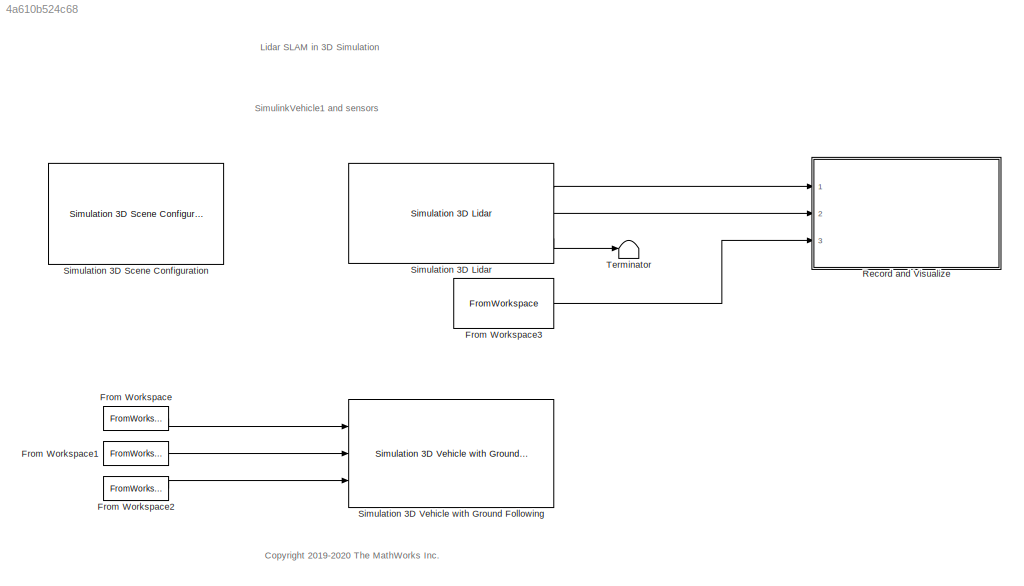
MODEL slx_4a610b524c68
KIND model
CONFIG AbsTol = auto
CONFIG EnableMultiTasking = off
CONFIG FixedStep = auto
CONFIG MaxStep = auto
CONFIG MinStep = auto
CONFIG PreLoadFcn = % Load reference path for recorded drive segment\nxData   = load('refPosesX.mat');\nyData   = load('refPosesY.mat');\nyawData = load('refPosesT.mat');\n\n% Set up workspace variables used by model\nrefPosesX = xData.refPosesX;\nrefPosesY = yData.refPosesY;\nrefPosesT = yawData.refPosesT;\n\n% Load INS measurement\ninsMeasurement = load('insMeasurement.mat');\ninsMeasurement = insMeasurement.insMeasurement;\n
CONFIG RelTol = 1e-3
CONFIG SampleTimeConstraint = Unconstrained
CONFIG SolverName = VariableStepAuto
CONFIG StartTime = 0.0
CONFIG StopTime = 106.1385
BLOCK [FromWorkspace] From Workspace
  OutputAfterFinalValue = Holding final value
  VariableName = refPosesX
BLOCK [FromWorkspace] From Workspace1
  OutputAfterFinalValue = Holding final value
  VariableName = refPosesY
BLOCK [FromWorkspace] From Workspace2
  Interpolate = off
  OutputAfterFinalValue = Holding final value
  VariableName = refPosesT
BLOCK [FromWorkspace] From Workspace3
  Interpolate = off
  OutputAfterFinalValue = Holding final value
  SampleTime = 0.1
  VariableName = insMeasurement
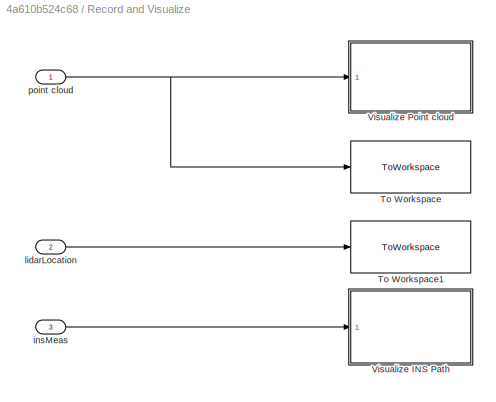
BLOCK [SubSystem] Record and Visualize
  NameLocation = top
  Ports = [3]
  RequestExecContextInheritance = off
  TreatAsAtomicUnit = on
BLOCK [ToWorkspace] Record and Visualize/To Workspace
  MaxDataPoints = inf
  Ports = [1]
  SampleTime = -1
  SaveFormat = Structure With Time
  VariableName = ptCloudData
BLOCK [ToWorkspace] Record and Visualize/To Workspace1
  FixptAsFi = on
  MaxDataPoints = inf
  Ports = [1]
  SampleTime = -1
  SaveFormat = Structure With Time
  VariableName = lidarLocation
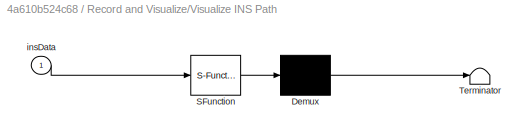
BLOCK [SubSystem] Record and Visualize/Visualize INS Path
  ErrorFcn = Stateflow.Translate.translate
  PermitHierarchicalResolution = ExplicitOnly
  Ports = [1]
  RequestExecContextInheritance = off
  SFBlockType = MATLAB Function
  StopFcn = playerFigure = findall(groot,'type','figure','name','INS Sensor Display');\n\nif ~isempty(playerFigure)\n    playerFigure = playerFigure(end);\n    if isvalid(playerFigure)\n        close(playerFigure);\n    end\nend
  TreatAsAtomicUnit = on
BLOCK [Demux] Record and Visualize/Visualize INS Path/ Demux 
  Outputs = 1
  Ports = [1, 1]
BLOCK [S-Function] Record and Visualize/Visualize INS Path/ SFunction 
  EnableBusSupport = off
  FunctionName = sf_sfun
  PortCounts = [1 1]
  Ports = [1, 1]
  SFcnIsStateOwnerBlock = off
  SFunctionDeploymentMode = off
  Tag = Stateflow S-Function 3
BLOCK [Terminator] Record and Visualize/Visualize INS Path/ Terminator 
BLOCK [Inport] Record and Visualize/Visualize INS Path/insData
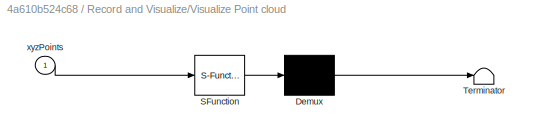
BLOCK [SubSystem] Record and Visualize/Visualize Point cloud
  ErrorFcn = Stateflow.Translate.translate
  PermitHierarchicalResolution = ExplicitOnly
  Ports = [1]
  RequestExecContextInheritance = off
  SFBlockType = MATLAB Function
  StopFcn = playerFigure = findall(groot,'type','figure','name','Point Cloud Player');\n\nif ~isempty(playerFigure)\n    playerFigure = playerFigure(end);\n    if isvalid(playerFigure)\n        close(playerFigure);\n    end\nend
  TreatAsAtomicUnit = on
BLOCK [Demux] Record and Visualize/Visualize Point cloud/ Demux 
  Outputs = 1
  Ports = [1, 1]
BLOCK [S-Function] Record and Visualize/Visualize Point cloud/ SFunction 
  EnableBusSupport = off
  FunctionName = sf_sfun
  PortCounts = [1 1]
  Ports = [1, 1]
  SFcnIsStateOwnerBlock = off
  SFunctionDeploymentMode = off
  Tag = Stateflow S-Function 2
BLOCK [Terminator] Record and Visualize/Visualize Point cloud/ Terminator 
BLOCK [Inport] Record and Visualize/Visualize Point cloud/xyzPoints
BLOCK [Inport] Record and Visualize/insMeas
  Port = 3
BLOCK [Inport] Record and Visualize/lidarLocation
  Port = 2
BLOCK [Inport] Record and Visualize/point cloud
BLOCK [Reference] Simulation 3D Lidar  REF=sim3dphyssensorlib/Simulation 3D Lidar
  Ports = [0, 3]
  SourceBlock = sim3dphyssensorlib/Simulation 3D Lidar
  SourceType = Simulation 3D Lidar
BLOCK [Reference] Simulation 3D Scene Configuration  REF=sim3dlib/Simulation 3D Scene Configuration
  Ports = []
  Priority = 0
  SourceBlock = sim3dlib/Simulation 3D Scene Configuration
  SourceType = Simulation 3D Scene Configuration
BLOCK [Reference] Simulation 3D Vehicle with Ground Following  REF=sim3dautolib/Simulation 3D Vehicle with Ground Following
  Ports = [3]
  Priority = -1
  SourceBlock = sim3dautolib/Simulation 3D Vehicle with Ground Following
  SourceType = Simulation 3D Vehicle with Ground Following
BLOCK [Terminator] Terminator
ANNOTATION (root): <copyright redacted>
ANNOTATION (root): Lidar SLAM in 3D Simulation
ANNOTATION (root): SimulinkVehicle1 and sensors
LINE From Workspace1:1 -> Simulation 3D Vehicle with Ground Following:2
LINE From Workspace2:1 -> Simulation 3D Vehicle with Ground Following:3
LINE From Workspace3:1 -> Record and Visualize:3
LINE From Workspace:1 -> Simulation 3D Vehicle with Ground Following:1
LINE Record and Visualize/insMeas:1 -> Record and Visualize/Visualize INS Path:1
LINE Record and Visualize/lidarLocation:1 -> Record and Visualize/To Workspace1:1
NET Record and Visualize/point cloud:1 -> Record and Visualize/To Workspace:1, Record and Visualize/Visualize Point cloud:1
LINE Simulation 3D Lidar:1 -> Record and Visualize:1
LINE Simulation 3D Lidar:2 -> Record and Visualize:2
LINE Simulation 3D Lidar:3 -> Terminator:1
note: NET lines group one-source signal fan-out (src -> all destinations, sorted); 1:1 wires keep LINE
CHART Record and Visualize/Visualize INS Path states=1 transitions=1
  STATE_LABEL 'eML_blk_kernel()'
  STATE_LABEL "SCRIPT:\nfunction visualizeINSPath(insData)\n%visualizeINSPath Visualize INS path on scene image\n%   helperPlotPath plots the path specified by x,y waypoint on the current\n%   scene.\n\n% <copyright redacted>\n\ncoder.extrinsic('helperShowSceneImage', 'figure', 'title', 'movegui', ...\n    'isvalid', 'images.roi.Polyline', 'helperUpdatePolyline', 'xlim', 'ylim');\n\npersistent hFig hPoly;\n\nx ...<+757ch>"
CHART Record and Visualize/Visualize Point cloud states=1 transitions=1
  STATE_LABEL 'eML_blk_kernel()'
  STATE_LABEL "SCRIPT:\nfunction VisualizePointCloud(xyzPoints)\n%VisualizePointCloud Display point cloud\n\ncoder.extrinsic('isOpen', 'pcplayer')\n\npersistent player;\n\nif isempty(player)\n    % Configure axes limits\n    xlimits = [-90 90];\n    ylimits = [-90 90];\n    zlimits = [ -5 40];\n    \n    % Create a streaming Lidar viewer\n    player = pcplayer(xlimits, ylimits, zlimits);\nend\n\nif ~isempty(player) && isOpen(play...<+37ch>"
CHART  states=0 transitions=0
CHART  states=0 transitions=0
